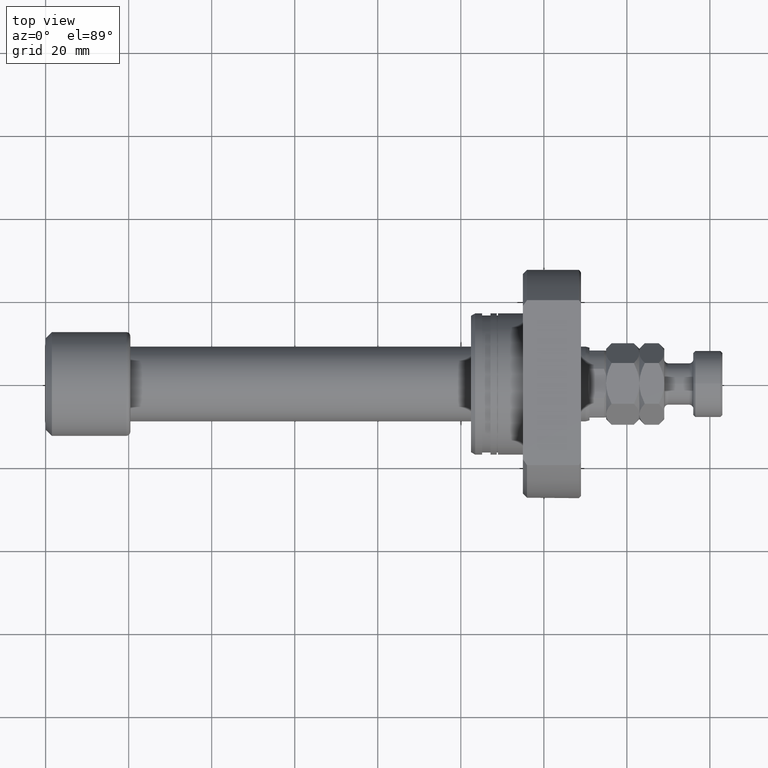
[diagram: clean part render]
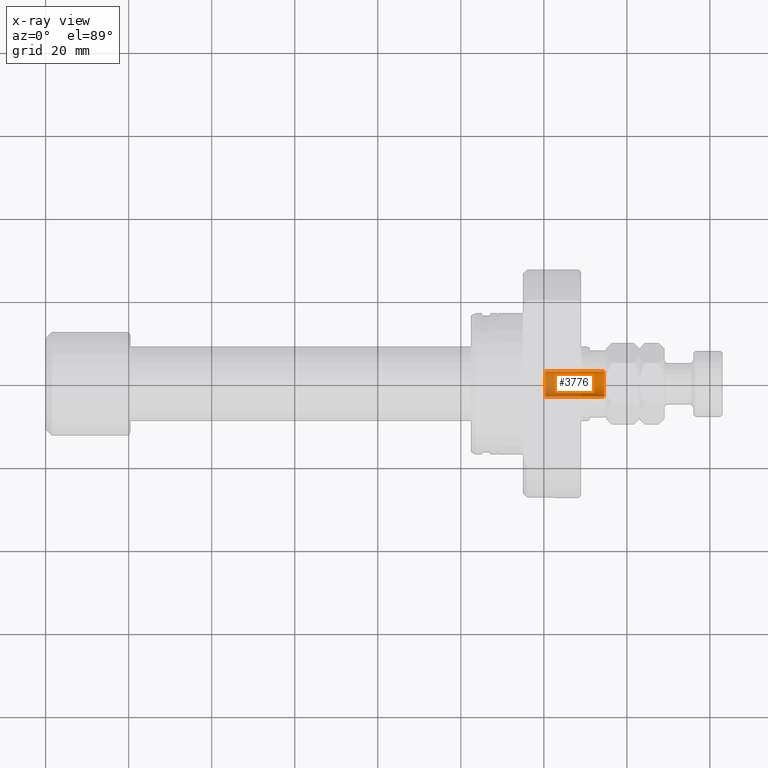
[diagram: x-ray — body ghosted, one internal face saturated and labeled with its STEP entity id]
A machine part, top view, then the same camera in x-ray: the body is ghosted and one INTERNAL B-rep face — a face not visible from any outside direction — is saturated and labeled: STEP entity #3776.
In plain terms, the highlighted cylindrical surface (edge-blend (fillet) strip) has radius 3 mm, axis along (1, -0, 0).
Its self-contained STEP definition (entity closure, byte-faithful):
#246 = VERTEX_POINT ( 'NONE', #1912 ) ;
#299 = EDGE_CURVE ( 'NONE', #246, #717, #3304, .T. ) ;
#420 = CARTESIAN_POINT ( 'NONE',  ( 120.2999999999999261, -3.000000000002648548, 3.673940397442862041E-16 ) ) ;
#704 = CARTESIAN_POINT ( 'NONE',  ( 120.2999999999999829, -1.993689553789153133E-12, 0.000000000000000000 ) ) ;
#717 = VERTEX_POINT ( 'NONE', #3874 ) ;
#767 = ORIENTED_EDGE ( 'NONE', *, *, #1714, .T. ) ;
#786 = AXIS2_PLACEMENT_3D ( 'NONE', #4836, #4465, #4124 ) ;
#901 = VECTOR ( 'NONE', #3029, 1000.000000000000000 ) ;
#910 = AXIS2_PLACEMENT_3D ( 'NONE', #704, #1830, #4815 ) ;
#941 = VECTOR ( 'NONE', #1962, 1000.000000000000000 ) ;
#1019 = CARTESIAN_POINT ( 'NONE',  ( 120.2999999999999829, -1.993689553789153133E-12, 0.000000000000000000 ) ) ;
#1040 = DIRECTION ( 'NONE',  ( 1.850371707708190232E-14, 1.000000000000000000, 0.000000000000000000 ) ) ;
#1110 = EDGE_LOOP ( 'NONE', ( #2951, #767, #3315, #3260 ) ) ;
#1544 = CARTESIAN_POINT ( 'NONE',  ( 120.3000000000000256, 2.999999999998661071, 0.000000000000000000 ) ) ;
#1630 = VERTEX_POINT ( 'NONE', #420 ) ;
#1714 = EDGE_CURVE ( 'NONE', #1630, #246, #2746, .T. ) ;
#1830 = DIRECTION ( 'NONE',  ( 1.000000000000000000, -1.657264799492230625E-14, -0.000000000000000000 ) ) ;
#1912 = CARTESIAN_POINT ( 'NONE',  ( 134.5000000000000000, -3.000000000002883915, 3.673940397443006501E-16 ) ) ;
#1962 = DIRECTION ( 'NONE',  ( 1.000000000000000000, -1.657264799492230625E-14, -0.000000000000000000 ) ) ;
#1971 = CIRCLE ( 'NONE', #2291, 3.000000000000655032 ) ;
#2241 = CARTESIAN_POINT ( 'NONE',  ( 120.3000000000000256, 2.999999999998661071, 0.000000000000000000 ) ) ;
#2291 = AXIS2_PLACEMENT_3D ( 'NONE', #1019, #4834, #1040 ) ;
#2639 = EDGE_CURVE ( 'NONE', #4249, #717, #3394, .T. ) ;
#2746 = LINE ( 'NONE', #3472, #941 ) ;
#2951 = ORIENTED_EDGE ( 'NONE', *, *, #4873, .F. ) ;
#3029 = DIRECTION ( 'NONE',  ( 1.000000000000000000, -1.657264799492230625E-14, -0.000000000000000000 ) ) ;
#3260 = ORIENTED_EDGE ( 'NONE', *, *, #2639, .F. ) ;
#3304 = CIRCLE ( 'NONE', #786, 3.000000000000655032 ) ;
#3315 = ORIENTED_EDGE ( 'NONE', *, *, #299, .T. ) ;
#3343 = CYLINDRICAL_SURFACE ( 'NONE', #910, 3.000000000000655032 ) ;
#3394 = LINE ( 'NONE', #1544, #901 ) ;
#3395 = FACE_OUTER_BOUND ( 'NONE', #1110, .T. ) ;
#3472 = CARTESIAN_POINT ( 'NONE',  ( 120.2999999999999261, -3.000000000002648548, 3.673940397442862041E-16 ) ) ;
#3776 = ADVANCED_FACE ( 'NONE', ( #3395 ), #3343, .F. ) ;
#3874 = CARTESIAN_POINT ( 'NONE',  ( 134.5000000000001137, 2.999999999998425704, 0.000000000000000000 ) ) ;
#4124 = DIRECTION ( 'NONE',  ( -1.850371707708190232E-14, -1.000000000000000000, 0.000000000000000000 ) ) ;
#4249 = VERTEX_POINT ( 'NONE', #2241 ) ;
#4465 = DIRECTION ( 'NONE',  ( 1.000000000000000000, -1.657264799492235042E-14, 0.000000000000000000 ) ) ;
#4815 = DIRECTION ( 'NONE',  ( 1.850371707708190232E-14, 1.000000000000000000, 0.000000000000000000 ) ) ;
#4834 = DIRECTION ( 'NONE',  ( 1.000000000000000000, -1.657264799492230625E-14, 0.000000000000000000 ) ) ;
#4836 = CARTESIAN_POINT ( 'NONE',  ( 134.5000000000000568, -2.229021155317051935E-12, 0.000000000000000000 ) ) ;
#4873 = EDGE_CURVE ( 'NONE', #1630, #4249, #1971, .T. ) ;